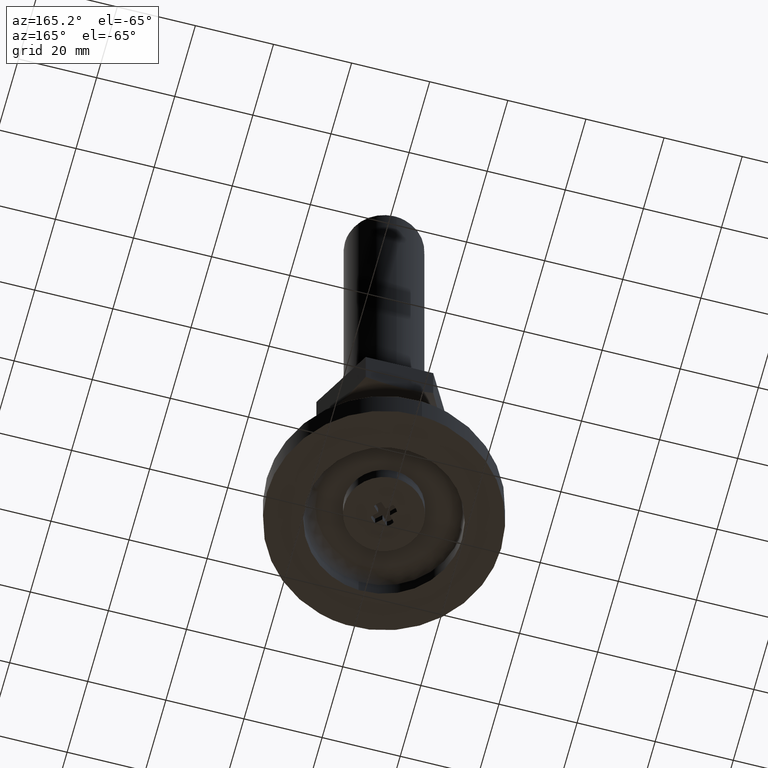
[diagram: clean part render]
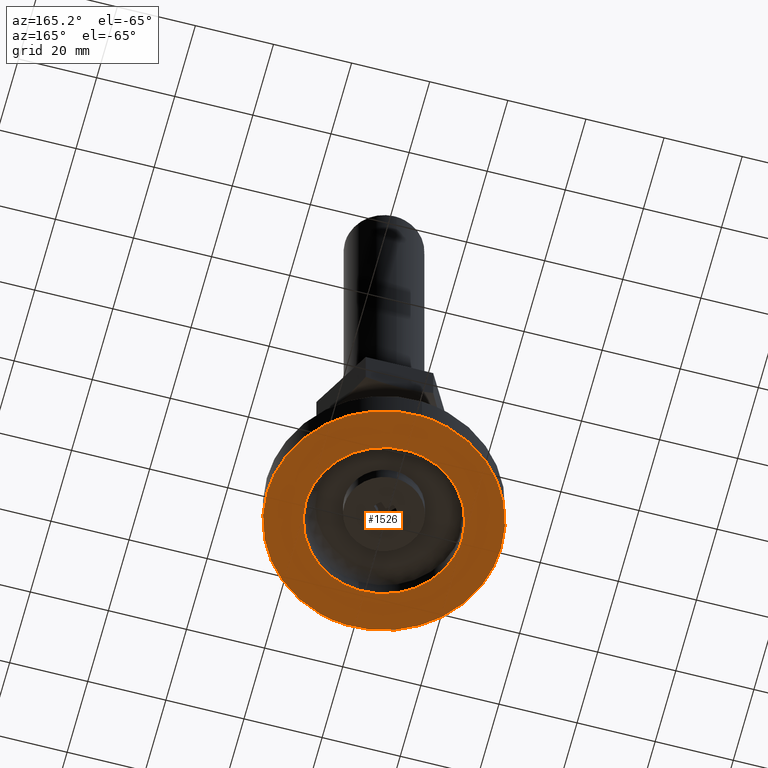
[diagram: same view with one face highlighted and labeled with its STEP entity id]
A machine part, auxiliary view. The second image highlights one B-rep face of the part: STEP entity #1526.
In plain terms, the highlighted face is a freeform B-spline surface patch.
Its self-contained STEP definition (entity closure, byte-faithful):
#1283=CARTESIAN_POINT('',(-1.831408107466978,29.944046893190372,-7.077672E-016));
#1284=VERTEX_POINT('',#1283);
#1292=CARTESIAN_POINT('',(1.831408107466978,-29.944046893190372,2.914335E-016));
#1293=VERTEX_POINT('',#1292);
#1299=CARTESIAN_POINT('',(30.0,0.0,0.0));
#1300=VERTEX_POINT('',#1299);
#1301=CARTESIAN_POINT('',(30.0,0.0,0.0));
#1302=CARTESIAN_POINT('',(29.999999999998831,-28.221227404183278,1.457168E-016));
#1303=CARTESIAN_POINT('',(1.831408107466978,-29.944046893190368,2.914335E-016));
#1311=(BOUNDED_CURVE()B_SPLINE_CURVE(2,(#1301,#1302,#1303),.UNSPECIFIED.,.F.,.U.)B_SPLINE_CURVE_WITH_KNOTS((3,3),(0.500000000000000,0.739333239285582),.UNSPECIFIED.)CURVE()GEOMETRIC_REPRESENTATION_ITEM()RATIONAL_B_SPLINE_CURVE((1.0,0.719603668706383,0.976072635431122))REPRESENTATION_ITEM(''));
#1312=EDGE_CURVE('',#1300,#1293,#1311,.T.);
#1314=CARTESIAN_POINT('',(-1.831408107466978,29.944046893190368,-7.077672E-016));
#1315=CARTESIAN_POINT('',(-0.916558792265105,29.999999999961950,-6.975964E-016));
#1316=CARTESIAN_POINT('',(2.288635E-012,29.999999999962540,-6.867846E-016));
#1317=CARTESIAN_POINT('',(30.000000000001116,29.999999999981835,-3.329010E-016));
#1318=CARTESIAN_POINT('',(30.0,0.0,0.0));
#1326=(BOUNDED_CURVE()B_SPLINE_CURVE(2,(#1314,#1315,#1316,#1317,#1318),.UNSPECIFIED.,.F.,.U.)B_SPLINE_CURVE_WITH_KNOTS((3,2,3),(0.239333239285582,0.250000000000000,0.500000000000000),.UNSPECIFIED.)CURVE()GEOMETRIC_REPRESENTATION_ITEM()RATIONAL_B_SPLINE_CURVE((0.976072635431122,0.987503112480164,1.0,0.707106781186547,1.0))REPRESENTATION_ITEM(''));
#1327=EDGE_CURVE('',#1284,#1300,#1326,.T.);
#1351=CARTESIAN_POINT('',(-30.0,0.0,0.0));
#1352=VERTEX_POINT('',#1351);
#1353=CARTESIAN_POINT('',(-30.0,0.0,0.0));
#1354=CARTESIAN_POINT('',(-29.999999999998817,28.221227404183264,-3.538836E-016));
#1355=CARTESIAN_POINT('',(-1.831408107466978,29.944046893190368,-7.077672E-016));
#1363=(BOUNDED_CURVE()B_SPLINE_CURVE(2,(#1353,#1354,#1355),.UNSPECIFIED.,.F.,.U.)B_SPLINE_CURVE_WITH_KNOTS((3,3),(0.0,0.239333239285582),.UNSPECIFIED.)CURVE()GEOMETRIC_REPRESENTATION_ITEM()RATIONAL_B_SPLINE_CURVE((1.0,0.719603668706383,0.976072635431122))REPRESENTATION_ITEM(''));
#1364=EDGE_CURVE('',#1352,#1284,#1363,.T.);
#1366=CARTESIAN_POINT('',(1.831408107466978,-29.944046893190368,2.914335E-016));
#1367=CARTESIAN_POINT('',(0.916558792265109,-29.999999999961950,2.872456E-016));
#1368=CARTESIAN_POINT('',(-2.279586E-012,-29.999999999962540,2.827936E-016));
#1369=CARTESIAN_POINT('',(-30.000000000001116,-29.999999999981835,1.370769E-016));
#1370=CARTESIAN_POINT('',(-30.0,0.0,0.0));
#1378=(BOUNDED_CURVE()B_SPLINE_CURVE(2,(#1366,#1367,#1368,#1369,#1370),.UNSPECIFIED.,.F.,.U.)B_SPLINE_CURVE_WITH_KNOTS((3,2,3),(0.739333239285582,0.750000000000000,1.0),.UNSPECIFIED.)CURVE()GEOMETRIC_REPRESENTATION_ITEM()RATIONAL_B_SPLINE_CURVE((0.976072635431122,0.987503112480164,1.0,0.707106781186547,1.0))REPRESENTATION_ITEM(''));
#1379=EDGE_CURVE('',#1293,#1352,#1378,.T.);
#1405=CARTESIAN_POINT('',(-1.220954699610934,19.962696952597309,5.464101E-013));
#1406=VERTEX_POINT('',#1405);
#1407=CARTESIAN_POINT('',(20.0,0.0,0.0));
#1408=VERTEX_POINT('',#1407);
#1409=CARTESIAN_POINT('',(-1.220954699610934,19.962696952597316,5.464101E-013));
#1410=CARTESIAN_POINT('',(-0.611047197869862,19.999999999993612,5.385580E-013));
#1411=CARTESIAN_POINT('',(3.830910E-013,19.999999999993712,5.302109E-013));
#1412=CARTESIAN_POINT('',(20.000000000000181,19.999999999996941,2.570059E-013));
#1413=CARTESIAN_POINT('',(20.0,0.0,0.0));
#1421=(BOUNDED_CURVE()B_SPLINE_CURVE(2,(#1409,#1410,#1411,#1412,#1413),.UNSPECIFIED.,.F.,.U.)B_SPLINE_CURVE_WITH_KNOTS((3,2,3),(0.239333101324664,0.250000000000000,0.500000000000000),.UNSPECIFIED.)CURVE()GEOMETRIC_REPRESENTATION_ITEM()RATIONAL_B_SPLINE_CURVE((0.976072339754074,0.987502950848895,1.0,0.707106781186548,1.0))REPRESENTATION_ITEM(''));
#1422=EDGE_CURVE('',#1406,#1408,#1421,.T.);
#1424=CARTESIAN_POINT('',(1.220954699610932,-19.962696952597309,5.464101E-013));
#1425=VERTEX_POINT('',#1424);
#1426=CARTESIAN_POINT('',(20.0,0.0,0.0));
#1427=CARTESIAN_POINT('',(19.999999999999801,-18.814136531723499,2.732051E-013));
#1428=CARTESIAN_POINT('',(1.220954699610932,-19.962696952597316,5.464101E-013));
#1436=(BOUNDED_CURVE()B_SPLINE_CURVE(2,(#1426,#1427,#1428),.UNSPECIFIED.,.F.,.U.)B_SPLINE_CURVE_WITH_KNOTS((3,3),(0.500000000000000,0.739333101324663),.UNSPECIFIED.)CURVE()GEOMETRIC_REPRESENTATION_ITEM()RATIONAL_B_SPLINE_CURVE((1.0,0.719603830337653,0.976072339754074))REPRESENTATION_ITEM(''));
#1437=EDGE_CURVE('',#1408,#1425,#1436,.T.);
#1472=CARTESIAN_POINT('',(-20.0,0.0,0.0));
#1473=VERTEX_POINT('',#1472);
#1474=CARTESIAN_POINT('',(-20.0,0.0,0.0));
#1475=CARTESIAN_POINT('',(-19.999999999999801,18.814136531723499,2.732051E-013));
#1476=CARTESIAN_POINT('',(-1.220954699610934,19.962696952597316,5.464101E-013));
#1484=(BOUNDED_CURVE()B_SPLINE_CURVE(2,(#1474,#1475,#1476),.UNSPECIFIED.,.F.,.U.)B_SPLINE_CURVE_WITH_KNOTS((3,3),(0.0,0.239333101324664),.UNSPECIFIED.)CURVE()GEOMETRIC_REPRESENTATION_ITEM()RATIONAL_B_SPLINE_CURVE((1.0,0.719603830337653,0.976072339754074))REPRESENTATION_ITEM(''));
#1485=EDGE_CURVE('',#1473,#1406,#1484,.T.);
#1491=CARTESIAN_POINT('',(1.220954699610932,-19.962696952597316,5.464101E-013));
#1492=CARTESIAN_POINT('',(0.611047197869860,-19.999999999993612,5.385580E-013));
#1493=CARTESIAN_POINT('',(-3.850301E-013,-19.999999999993712,5.302109E-013));
#1494=CARTESIAN_POINT('',(-20.000000000000181,-19.999999999996941,2.570059E-013));
#1495=CARTESIAN_POINT('',(-20.0,0.0,0.0));
#1503=(BOUNDED_CURVE()B_SPLINE_CURVE(2,(#1491,#1492,#1493,#1494,#1495),.UNSPECIFIED.,.F.,.U.)B_SPLINE_CURVE_WITH_KNOTS((3,2,3),(0.739333101324663,0.750000000000000,1.0),.UNSPECIFIED.)CURVE()GEOMETRIC_REPRESENTATION_ITEM()RATIONAL_B_SPLINE_CURVE((0.976072339754074,0.987502950848895,1.0,0.707106781186548,1.0))REPRESENTATION_ITEM(''));
#1504=EDGE_CURVE('',#1425,#1473,#1503,.T.);
#1509=CARTESIAN_POINT('',(-32.996999883708362,-32.996261619275742,0.0));
#1510=CARTESIAN_POINT('',(32.997001493033771,-32.996261619275742,0.0));
#1511=CARTESIAN_POINT('',(-32.996999883708362,32.996260546392143,0.0));
#1512=CARTESIAN_POINT('',(32.997001493033771,32.996260546392143,0.0));
#1513=B_SPLINE_SURFACE_WITH_KNOTS('',1,1,((#1509,#1511),(#1510,#1512)),.UNSPECIFIED.,.F.,.F.,.U.,(2,2),(2,2),(0.0,65.994001376742119),(0.0,65.992522165667879),.UNSPECIFIED.);
#1514=ORIENTED_EDGE('',*,*,#1364,.T.);
#1515=ORIENTED_EDGE('',*,*,#1327,.T.);
#1516=ORIENTED_EDGE('',*,*,#1312,.T.);
#1517=ORIENTED_EDGE('',*,*,#1379,.T.);
#1518=EDGE_LOOP('',(#1514,#1515,#1516,#1517));
#1519=FACE_OUTER_BOUND('',#1518,.T.);
#1520=ORIENTED_EDGE('',*,*,#1437,.F.);
#1521=ORIENTED_EDGE('',*,*,#1422,.F.);
#1522=ORIENTED_EDGE('',*,*,#1485,.F.);
#1523=ORIENTED_EDGE('',*,*,#1504,.F.);
#1524=EDGE_LOOP('',(#1520,#1521,#1522,#1523));
#1525=FACE_BOUND('',#1524,.T.);
#1526=ADVANCED_FACE('',(#1519,#1525),#1513,.F.);